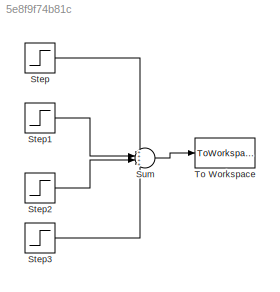
MODEL slx_5e8f9f74b81c
KIND model
CONFIG AbsTol = auto
CONFIG FixedStep = auto
CONFIG MaxStep = auto
CONFIG MinStep = auto
CONFIG RelTol = 1e-3
CONFIG SampleTimeConstraint = Unconstrained
CONFIG Solver = VariableStepAuto
CONFIG SolverMode = Auto
CONFIG SolverName = VariableStepAuto
CONFIG StartTime = 0.0
CONFIG StopTime = total_time
BLOCK [Step] Step
  After = angle1
  SampleTime = 0
  Time = 0
BLOCK [Step] Step1
  After = angle2
  SampleTime = 0
  Time = t1
BLOCK [Step] Step2
  After = angle3
  SampleTime = 0
  Time = t2
BLOCK [Step] Step3
  After = angle4
  SampleTime = 0
  Time = t3
BLOCK [Sum] Sum
  IconShape = round
  InputSameDT = off
  Inputs = ++++
  OutDataTypeStr = Inherit: Inherit via internal rule
  Ports = [4, 1]
  SaturateOnIntegerOverflow = off
BLOCK [ToWorkspace] To Workspace
  FixptAsFi = on
  MaxDataPoints = inf
  Ports = [1]
  SampleTime = -1
  Save2DSignal = 3-D array (concatenate along third dimension)
  SaveFormat = Timeseries
  VariableName = chi_c
LINE Step1:1 -> Sum:2
LINE Step2:1 -> Sum:3
LINE Step3:1 -> Sum:4
LINE Step:1 -> Sum:1
LINE Sum:1 -> To Workspace:1
